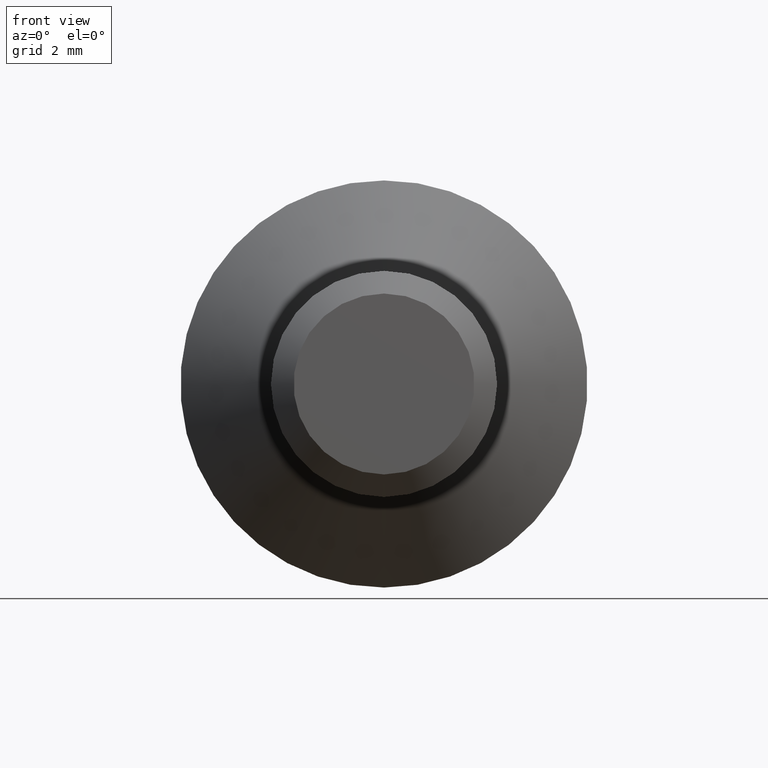
[diagram: clean part render]
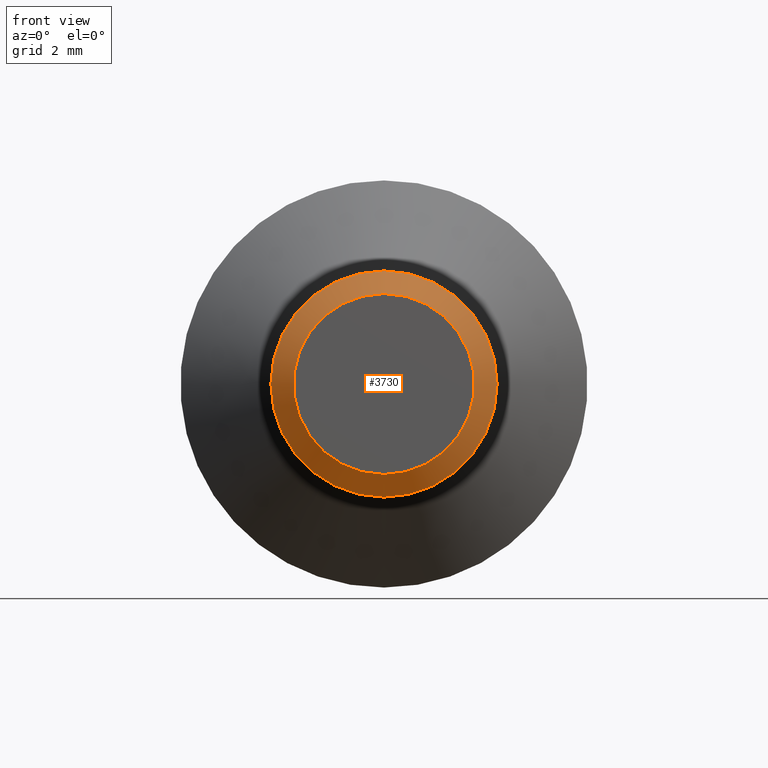
[diagram: same view with one face highlighted and labeled with its STEP entity id]
A machine part, front view. The second image highlights one B-rep face of the part: STEP entity #3730.
In plain terms, the highlighted conical surface has half-angle 45 deg.
Its self-contained STEP definition (entity closure, byte-faithful):
#194 = AXIS2_PLACEMENT_3D ( 'NONE', #5589, #5632, #10119 ) ;
#349 = ORIENTED_EDGE ( 'NONE', *, *, #2796, .F. ) ;
#785 = CARTESIAN_POINT ( 'NONE',  ( 0.0000000000000000000, 0.4999999999999978400, 0.0000000000000000000 ) ) ;
#819 = EDGE_LOOP ( 'NONE', ( #5531 ) ) ;
#1856 = EDGE_CURVE ( 'NONE', #11610, #11610, #10004, .T. ) ;
#2796 = EDGE_CURVE ( 'NONE', #8649, #8649, #9447, .T. ) ;
#3730 = ADVANCED_FACE ( 'NONE', ( #3973, #14139 ), #12212, .T. ) ;
#3973 = FACE_OUTER_BOUND ( 'NONE', #819, .T. ) ;
#4206 = DIRECTION ( 'NONE',  ( 0.0000000000000000000, 1.000000000000000000, 0.0000000000000000000 ) ) ;
#4263 = CARTESIAN_POINT ( 'NONE',  ( 0.0000000000000000000, 3.061616997868388600E-017, -2.000000000000003600 ) ) ;
#4804 = AXIS2_PLACEMENT_3D ( 'NONE', #7744, #6600, #5285 ) ;
#5285 = DIRECTION ( 'NONE',  ( 0.0000000000000000000, 0.0000000000000000000, -1.000000000000000000 ) ) ;
#5531 = ORIENTED_EDGE ( 'NONE', *, *, #1856, .F. ) ;
#5589 = CARTESIAN_POINT ( 'NONE',  ( 0.0000000000000000000, 3.061616997868388600E-017, 0.0000000000000000000 ) ) ;
#5632 = DIRECTION ( 'NONE',  ( 0.0000000000000000000, 1.000000000000000000, 0.0000000000000000000 ) ) ;
#6545 = CARTESIAN_POINT ( 'NONE',  ( 0.0000000000000000000, 0.4999999999999978400, -2.500000000000001300 ) ) ;
#6600 = DIRECTION ( 'NONE',  ( -0.0000000000000000000, -1.000000000000000000, -0.0000000000000000000 ) ) ;
#7744 = CARTESIAN_POINT ( 'NONE',  ( 0.0000000000000000000, 3.061616997868388600E-017, 0.0000000000000000000 ) ) ;
#8649 = VERTEX_POINT ( 'NONE', #4263 ) ;
#9447 = CIRCLE ( 'NONE', #4804, 2.000000000000003600 ) ;
#10004 = CIRCLE ( 'NONE', #11283, 2.500000000000001300 ) ;
#10119 = DIRECTION ( 'NONE',  ( 0.0000000000000000000, 0.0000000000000000000, 1.000000000000000000 ) ) ;
#10156 = EDGE_LOOP ( 'NONE', ( #349 ) ) ;
#11283 = AXIS2_PLACEMENT_3D ( 'NONE', #785, #4206, #12024 ) ;
#11610 = VERTEX_POINT ( 'NONE', #6545 ) ;
#12024 = DIRECTION ( 'NONE',  ( 0.0000000000000000000, 0.0000000000000000000, -1.000000000000000000 ) ) ;
#12212 = CONICAL_SURFACE ( 'NONE', #194, 2.000000000000003600, 0.7853981633974482800 ) ;
#14139 = FACE_BOUND ( 'NONE', #10156, .T. ) ;